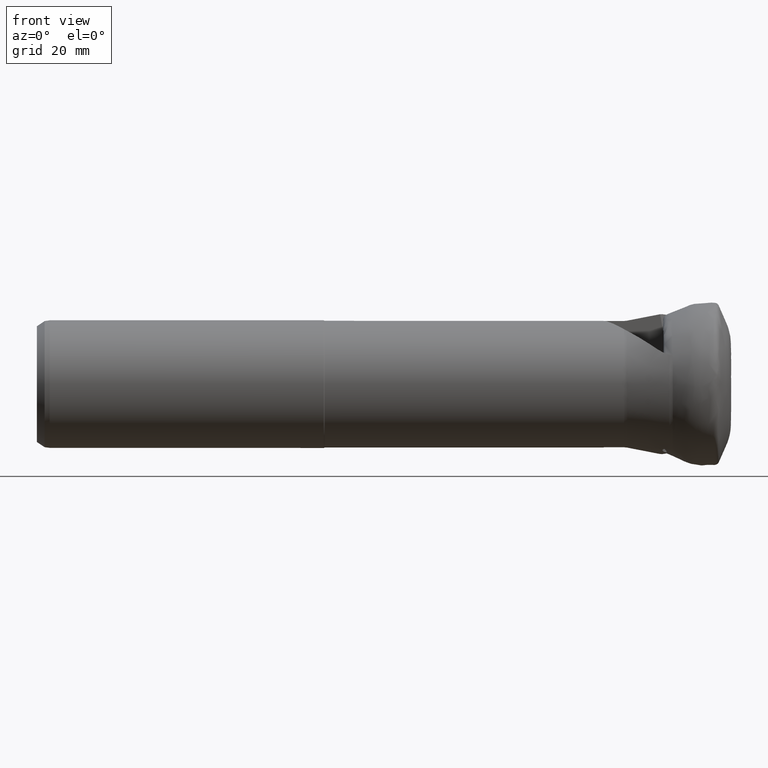
[diagram: clean part render]
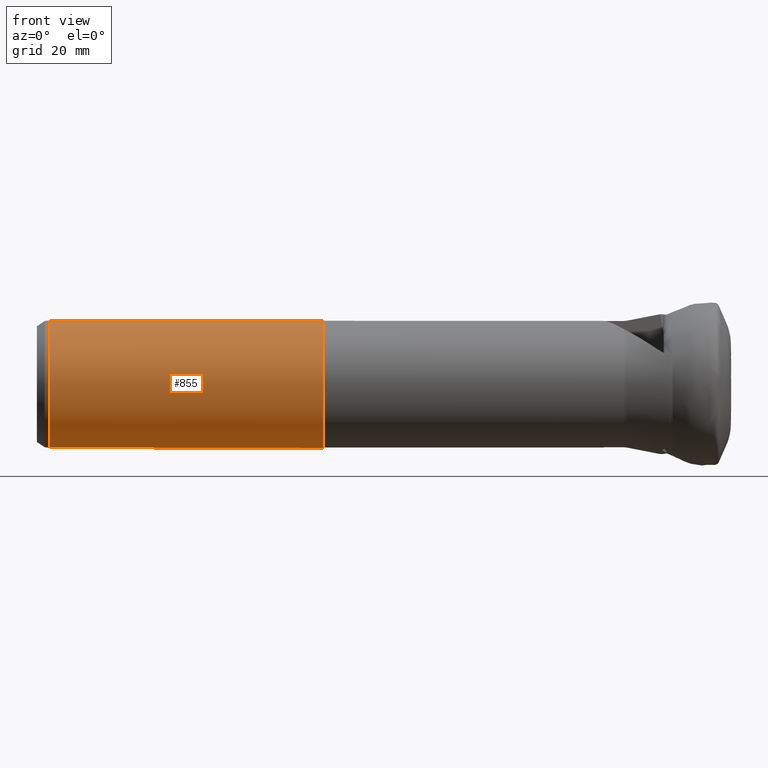
[diagram: same view with one face highlighted and labeled with its STEP entity id]
A machine part, front view. The second image highlights one B-rep face of the part: STEP entity #855.
In plain terms, the highlighted cylindrical surface (bore or boss wall) has radius 12.5 mm, axis along (-1, -0, -0).
Its self-contained STEP definition (entity closure, byte-faithful):
#16 = VERTEX_POINT ( 'NONE', #3770 ) ;
#60 = CIRCLE ( 'NONE', #1005, 12.50000000000000000 ) ;
#80 = CARTESIAN_POINT ( 'NONE',  ( -92.95808049365392400, 13.59717868338557900, 3.089404912919580000 ) ) ;
#173 = CARTESIAN_POINT ( 'NONE',  ( -96.85525917703947100, 9.700000000000017100, -7.884161337770797800 ) ) ;
#219 = CARTESIAN_POINT ( 'NONE',  ( -108.9552591770394700, 9.700000000000017100, 7.884161337770788000 ) ) ;
#241 = DIRECTION ( 'NONE',  ( 1.000000000000000000, 0.0000000000000000000, 0.0000000000000000000 ) ) ;
#252 = CARTESIAN_POINT ( 'NONE',  ( -96.85525917703947100, 9.700000000000017100, -7.884161337770797800 ) ) ;
#431 = CARTESIAN_POINT ( 'NONE',  ( -96.85525917703947100, 9.700000000000017100, 7.884161337770784400 ) ) ;
#527 = CARTESIAN_POINT ( 'NONE',  ( -114.0080804936539400, 13.59717868338557300, 3.089404912919573300 ) ) ;
#549 = EDGE_CURVE ( 'NONE', #4282, #4282, #2755, .T. ) ;
#580 = CARTESIAN_POINT ( 'NONE',  ( -92.95808049365393800, 13.59717868338557500, -3.089404912919594600 ) ) ;
#654 = LINE ( 'NONE', #5454, #4448 ) ;
#689 = ORIENTED_EDGE ( 'NONE', *, *, #2715, .T. ) ;
#768 = CARTESIAN_POINT ( 'NONE',  ( -78.73205409628259600, 0.0000000000000000000, 12.50000000000000000 ) ) ;
#855 = ADVANCED_FACE ( 'NONE', ( #1944, #2319, #5983 ), #5591, .T. ) ;
#970 = CARTESIAN_POINT ( 'NONE',  ( -78.73205409628259600, 0.0000000000000000000, 0.0000000000000000000 ) ) ;
#971 = DIRECTION ( 'NONE',  ( 1.000000000000000000, -0.0000000000000000000, -0.0000000000000000000 ) ) ;
#981 = DIRECTION ( 'NONE',  ( 0.0000000000000000000, 0.0000000000000000000, 1.000000000000000000 ) ) ;
#1005 = AXIS2_PLACEMENT_3D ( 'NONE', #1916, #1891, #1865 ) ;
#1042 = EDGE_CURVE ( 'NONE', #16, #1091, #5419, .T. ) ;
#1072 = LINE ( 'NONE', #4202, #5765 ) ;
#1079 = EDGE_LOOP ( 'NONE', ( #1630 ) ) ;
#1091 = VERTEX_POINT ( 'NONE', #252 ) ;
#1167 = EDGE_LOOP ( 'NONE', ( #3810, #3017, #2495, #2581 ) ) ;
#1197 = ORIENTED_EDGE ( 'NONE', *, *, #1042, .T. ) ;
#1259 = EDGE_CURVE ( 'Kante178', #1091, #4136, #5754, .T. ) ;
#1442 = EDGE_CURVE ( 'NONE', #4136, #2086, #654, .T. ) ;
#1593 = VECTOR ( 'NONE', #241, 1000.000000000000000 ) ;
#1602 = DIRECTION ( 'NONE',  ( -1.000000000000000000, -0.0000000000000000000, -0.0000000000000000000 ) ) ;
#1630 = ORIENTED_EDGE ( 'NONE', *, *, #549, .F. ) ;
#1761 = EDGE_CURVE ( 'Kante181', #2927, #2643, #4112, .T. ) ;
#1830 = EDGE_CURVE ( 'NONE', #2560, #2927, #4899, .T. ) ;
#1865 = DIRECTION ( 'NONE',  ( 0.0000000000000000000, 0.0000000000000000000, -1.000000000000000000 ) ) ;
#1891 = DIRECTION ( 'NONE',  ( -1.000000000000000000, 0.0000000000000000000, 0.0000000000000000000 ) ) ;
#1916 = CARTESIAN_POINT ( 'NONE',  ( -132.4052591770392600, 0.0000000000000000000, 0.0000000000000000000 ) ) ;
#1944 = FACE_OUTER_BOUND ( 'NONE', #1079, .T. ) ;
#2041 = CARTESIAN_POINT ( 'NONE',  ( -132.4052591770392000, 9.700000000000020600, 7.884161337770784400 ) ) ;
#2086 = VERTEX_POINT ( 'NONE', #219 ) ;
#2102 = CARTESIAN_POINT ( 'NONE',  ( -74.90525917703946800, 0.0000000000000000000, 0.0000000000000000000 ) ) ;
#2125 = ORIENTED_EDGE ( 'NONE', *, *, #1259, .T. ) ;
#2319 = FACE_OUTER_BOUND ( 'NONE', #1167, .T. ) ;
#2411 = ORIENTED_EDGE ( 'NONE', *, *, #1442, .T. ) ;
#2442 =( BOUNDED_CURVE ( )  B_SPLINE_CURVE ( 3, ( #4275, #4072, #5660, #5677 ),
 .UNSPECIFIED., .F., .F. ) 
 B_SPLINE_CURVE_WITH_KNOTS ( ( 4, 4 ),
 ( 5.600687989903616600, 6.965682624455555900 ),
 .UNSPECIFIED. ) 
 CURVE ( )  GEOMETRIC_REPRESENTATION_ITEM ( )  RATIONAL_B_SPLINE_CURVE ( ( 1.000000000000000000, 0.8506666666666675700, 0.8506666666666675700, 1.000000000000000000 ) ) 
 REPRESENTATION_ITEM ( '' )  );
#2479 = AXIS2_PLACEMENT_3D ( 'NONE', #970, #971, #981 ) ;
#2495 = ORIENTED_EDGE ( 'NONE', *, *, #2689, .T. ) ;
#2560 = VERTEX_POINT ( 'NONE', #3598 ) ;
#2581 = ORIENTED_EDGE ( 'NONE', *, *, #4278, .F. ) ;
#2628 = DIRECTION ( 'NONE',  ( -1.000000000000000000, -0.0000000000000000000, -0.0000000000000000000 ) ) ;
#2643 = VERTEX_POINT ( 'NONE', #4819 ) ;
#2651 = CARTESIAN_POINT ( 'NONE',  ( -117.9052591770394700, 9.700000000000015300, -7.884161337770788000 ) ) ;
#2666 = CARTESIAN_POINT ( 'NONE',  ( -74.90525917703946800, 9.700000000000020600, -7.884161337770784400 ) ) ;
#2689 = EDGE_CURVE ( 'NONE', #2643, #4274, #1072, .T. ) ;
#2696 = AXIS2_PLACEMENT_3D ( 'NONE', #2102, #1602, #3101 ) ;
#2715 = EDGE_CURVE ( 'Kante180', #2086, #16, #2442, .T. ) ;
#2747 = DIRECTION ( 'NONE',  ( 1.000000000000000000, 0.0000000000000000000, 0.0000000000000000000 ) ) ;
#2755 = CIRCLE ( 'NONE', #2479, 12.50000000000000000 ) ;
#2927 = VERTEX_POINT ( 'NONE', #2651 ) ;
#3017 = ORIENTED_EDGE ( 'NONE', *, *, #1761, .T. ) ;
#3101 = DIRECTION ( 'NONE',  ( 0.0000000000000000000, 0.0000000000000000000, 1.000000000000000000 ) ) ;
#3136 = CARTESIAN_POINT ( 'NONE',  ( -117.9052591770394700, 9.700000000000015300, 7.884161337770770200 ) ) ;
#3221 = CARTESIAN_POINT ( 'NONE',  ( -96.85525917703947100, 9.700000000000017100, 7.884161337770784400 ) ) ;
#3251 = CARTESIAN_POINT ( 'NONE',  ( -117.9052591770394700, 9.700000000000015300, -7.884161337770788000 ) ) ;
#3598 = CARTESIAN_POINT ( 'NONE',  ( -132.4052591770392000, 9.700000000000020600, -7.884161337770784400 ) ) ;
#3770 = CARTESIAN_POINT ( 'NONE',  ( -108.9552591770394700, 9.700000000000017100, -7.884161337770788000 ) ) ;
#3810 = ORIENTED_EDGE ( 'NONE', *, *, #1830, .T. ) ;
#3870 = CARTESIAN_POINT ( 'NONE',  ( -74.90525917703946800, 9.700000000000017100, -7.884161337770788000 ) ) ;
#4072 = CARTESIAN_POINT ( 'NONE',  ( -112.8524378604250400, 13.59717868338557000, 3.089404912919587500 ) ) ;
#4112 =( BOUNDED_CURVE ( )  B_SPLINE_CURVE ( 3, ( #3251, #5008, #527, #3136 ),
 .UNSPECIFIED., .F., .F. ) 
 B_SPLINE_CURVE_WITH_KNOTS ( ( 4, 4 ),
 ( 2.459095336313823900, 3.824089970865761400 ),
 .UNSPECIFIED. ) 
 CURVE ( )  GEOMETRIC_REPRESENTATION_ITEM ( )  RATIONAL_B_SPLINE_CURVE ( ( 1.000000000000000000, 0.8506666666666680100, 0.8506666666666680100, 1.000000000000000000 ) ) 
 REPRESENTATION_ITEM ( '' )  );
#4136 = VERTEX_POINT ( 'NONE', #3221 ) ;
#4202 = CARTESIAN_POINT ( 'NONE',  ( -74.90525917703946800, 9.700000000000020600, 7.884161337770784400 ) ) ;
#4229 = DIRECTION ( 'NONE',  ( -1.000000000000000000, -0.0000000000000000000, -0.0000000000000000000 ) ) ;
#4274 = VERTEX_POINT ( 'NONE', #2041 ) ;
#4275 = CARTESIAN_POINT ( 'NONE',  ( -108.9552591770394700, 9.700000000000017100, 7.884161337770788000 ) ) ;
#4278 = EDGE_CURVE ( 'NONE', #2560, #4274, #60, .T. ) ;
#4282 = VERTEX_POINT ( 'NONE', #768 ) ;
#4448 = VECTOR ( 'NONE', #2628, 1000.000000000000000 ) ;
#4819 = CARTESIAN_POINT ( 'NONE',  ( -117.9052591770394700, 9.700000000000015300, 7.884161337770770200 ) ) ;
#4899 = LINE ( 'NONE', #2666, #5096 ) ;
#5008 = CARTESIAN_POINT ( 'NONE',  ( -114.0080804936539400, 13.59717868338556600, -3.089404912919588000 ) ) ;
#5096 = VECTOR ( 'NONE', #2747, 1000.000000000000000 ) ;
#5419 = LINE ( 'NONE', #3870, #1593 ) ;
#5454 = CARTESIAN_POINT ( 'NONE',  ( -74.90525917703946800, 9.700000000000017100, 7.884161337770788000 ) ) ;
#5591 = CYLINDRICAL_SURFACE ( 'NONE', #2696, 12.50000000000000000 ) ;
#5660 = CARTESIAN_POINT ( 'NONE',  ( -112.8524378604250400, 13.59717868338557000, -3.089404912919584900 ) ) ;
#5677 = CARTESIAN_POINT ( 'NONE',  ( -108.9552591770394700, 9.700000000000017100, -7.884161337770788000 ) ) ;
#5754 =( BOUNDED_CURVE ( )  B_SPLINE_CURVE ( 3, ( #173, #580, #80, #431 ),
 .UNSPECIFIED., .F., .F. ) 
 B_SPLINE_CURVE_WITH_KNOTS ( ( 4, 4 ),
 ( 2.459095336313822600, 3.824089970865762700 ),
 .UNSPECIFIED. ) 
 CURVE ( )  GEOMETRIC_REPRESENTATION_ITEM ( )  RATIONAL_B_SPLINE_CURVE ( ( 1.000000000000000000, 0.8506666666666673500, 0.8506666666666673500, 1.000000000000000000 ) ) 
 REPRESENTATION_ITEM ( '' )  );
#5765 = VECTOR ( 'NONE', #4229, 1000.000000000000000 ) ;
#5863 = EDGE_LOOP ( 'NONE', ( #689, #1197, #2125, #2411 ) ) ;
#5983 = FACE_BOUND ( 'NONE', #5863, .T. ) ;